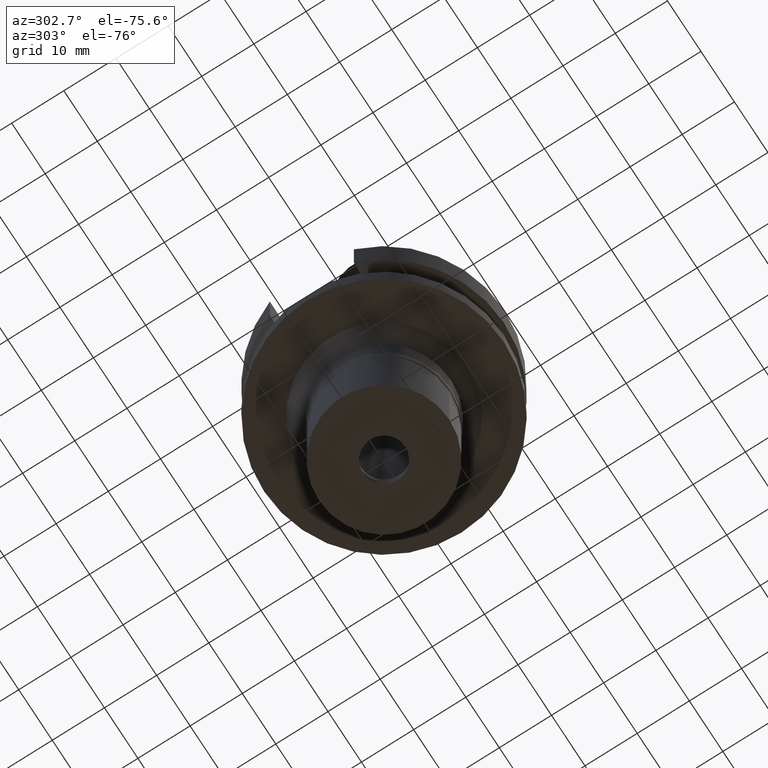
[diagram: clean part render]
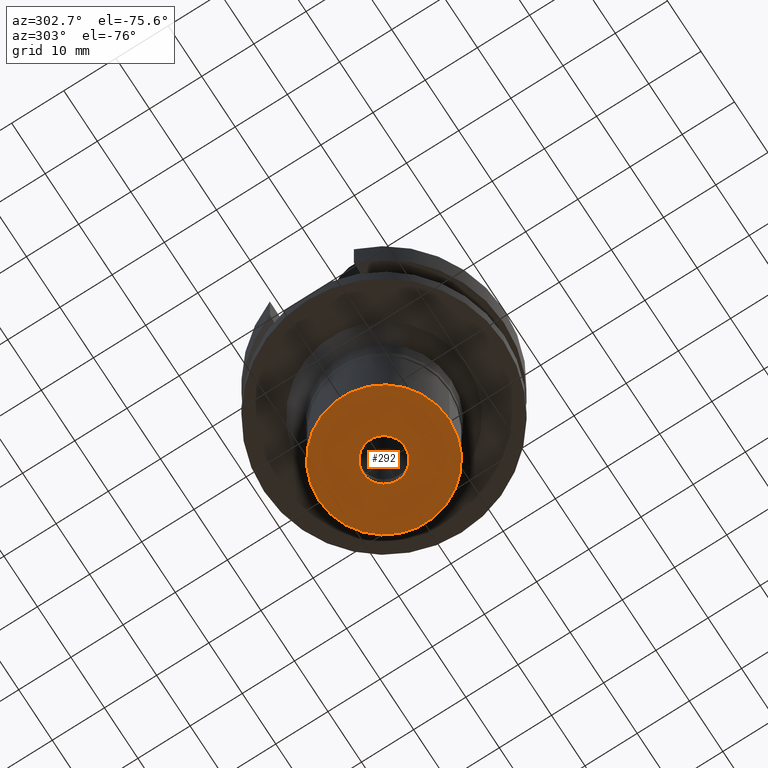
[diagram: same view with one face highlighted and labeled with its STEP entity id]
A machine part, auxiliary view. The second image highlights one B-rep face of the part: STEP entity #292.
In plain terms, the highlighted planar face has unit normal (0, 0, -1).
Its self-contained STEP definition (entity closure, byte-faithful):
#93 = FACE_OUTER_BOUND ( 'NONE', #535, .T. ) ;
#115 = EDGE_CURVE ( 'NONE', #2997, #127, #2849, .T. ) ;
#127 = VERTEX_POINT ( 'NONE', #652 ) ;
#204 = ORIENTED_EDGE ( 'NONE', *, *, #2317, .F. ) ;
#245 = AXIS2_PLACEMENT_3D ( 'NONE', #1989, #1810, #2454 ) ;
#292 = ADVANCED_FACE ( 'NONE', ( #93, #1548 ), #2915, .T. ) ;
#323 = DIRECTION ( 'NONE',  ( 0.0000000000000000000, 0.0000000000000000000, -1.000000000000000000 ) ) ;
#535 = EDGE_LOOP ( 'NONE', ( #2216, #204 ) ) ;
#588 = CARTESIAN_POINT ( 'NONE',  ( 0.0000000000000000000, 0.0000000000000000000, -20.50000000000000000 ) ) ;
#652 = CARTESIAN_POINT ( 'NONE',  ( 0.0000000000000000000, -12.50000000000000000, -20.50000000000000000 ) ) ;
#897 = EDGE_LOOP ( 'NONE', ( #2312, #2535 ) ) ;
#981 = VERTEX_POINT ( 'NONE', #2939 ) ;
#1027 = AXIS2_PLACEMENT_3D ( 'NONE', #2202, #323, #2446 ) ;
#1167 = DIRECTION ( 'NONE',  ( 0.0000000000000000000, 1.000000000000000000, 0.0000000000000000000 ) ) ;
#1214 = DIRECTION ( 'NONE',  ( 0.0000000000000000000, -1.000000000000000000, 0.0000000000000000000 ) ) ;
#1237 = EDGE_CURVE ( 'NONE', #981, #1769, #1287, .T. ) ;
#1240 = CIRCLE ( 'NONE', #245, 12.50000000000000000 ) ;
#1287 = CIRCLE ( 'NONE', #2943, 4.050000000000999911 ) ;
#1439 = CARTESIAN_POINT ( 'NONE',  ( 0.0000000000000000000, 4.050000000000999911, -20.50000000000000000 ) ) ;
#1464 = DIRECTION ( 'NONE',  ( 0.0000000000000000000, 0.0000000000000000000, -1.000000000000000000 ) ) ;
#1508 = CIRCLE ( 'NONE', #2848, 4.050000000000999911 ) ;
#1541 = AXIS2_PLACEMENT_3D ( 'NONE', #588, #2988, #2760 ) ;
#1548 = FACE_BOUND ( 'NONE', #897, .T. ) ;
#1695 = CARTESIAN_POINT ( 'NONE',  ( 0.0000000000000000000, 0.0000000000000000000, -20.50000000000000000 ) ) ;
#1769 = VERTEX_POINT ( 'NONE', #1439 ) ;
#1810 = DIRECTION ( 'NONE',  ( 0.0000000000000000000, 0.0000000000000000000, 1.000000000000000000 ) ) ;
#1914 = CARTESIAN_POINT ( 'NONE',  ( 0.0000000000000000000, 0.0000000000000000000, -20.50000000000000000 ) ) ;
#1962 = EDGE_CURVE ( 'NONE', #1769, #981, #1508, .T. ) ;
#1989 = CARTESIAN_POINT ( 'NONE',  ( 0.0000000000000000000, 0.0000000000000000000, -20.50000000000000000 ) ) ;
#2147 = DIRECTION ( 'NONE',  ( 0.0000000000000000000, 0.0000000000000000000, -1.000000000000000000 ) ) ;
#2202 = CARTESIAN_POINT ( 'NONE',  ( 0.0000000000000000000, 0.0000000000000000000, -20.50000000000000000 ) ) ;
#2216 = ORIENTED_EDGE ( 'NONE', *, *, #115, .F. ) ;
#2312 = ORIENTED_EDGE ( 'NONE', *, *, #1962, .F. ) ;
#2317 = EDGE_CURVE ( 'NONE', #127, #2997, #1240, .T. ) ;
#2446 = DIRECTION ( 'NONE',  ( 0.0000000000000000000, -1.000000000000000000, 0.0000000000000000000 ) ) ;
#2454 = DIRECTION ( 'NONE',  ( 0.0000000000000000000, -1.000000000000000000, 0.0000000000000000000 ) ) ;
#2535 = ORIENTED_EDGE ( 'NONE', *, *, #1237, .F. ) ;
#2718 = CARTESIAN_POINT ( 'NONE',  ( 0.0000000000000000000, 12.50000000000000000, -20.50000000000000000 ) ) ;
#2760 = DIRECTION ( 'NONE',  ( 0.0000000000000000000, 1.000000000000000000, 0.0000000000000000000 ) ) ;
#2848 = AXIS2_PLACEMENT_3D ( 'NONE', #1914, #2147, #1167 ) ;
#2849 = CIRCLE ( 'NONE', #1541, 12.50000000000000000 ) ;
#2915 = PLANE ( 'NONE',  #1027 ) ;
#2939 = CARTESIAN_POINT ( 'NONE',  ( 0.0000000000000000000, -4.050000000000999911, -20.50000000000000000 ) ) ;
#2943 = AXIS2_PLACEMENT_3D ( 'NONE', #1695, #1464, #1214 ) ;
#2988 = DIRECTION ( 'NONE',  ( 0.0000000000000000000, 0.0000000000000000000, 1.000000000000000000 ) ) ;
#2997 = VERTEX_POINT ( 'NONE', #2718 ) ;